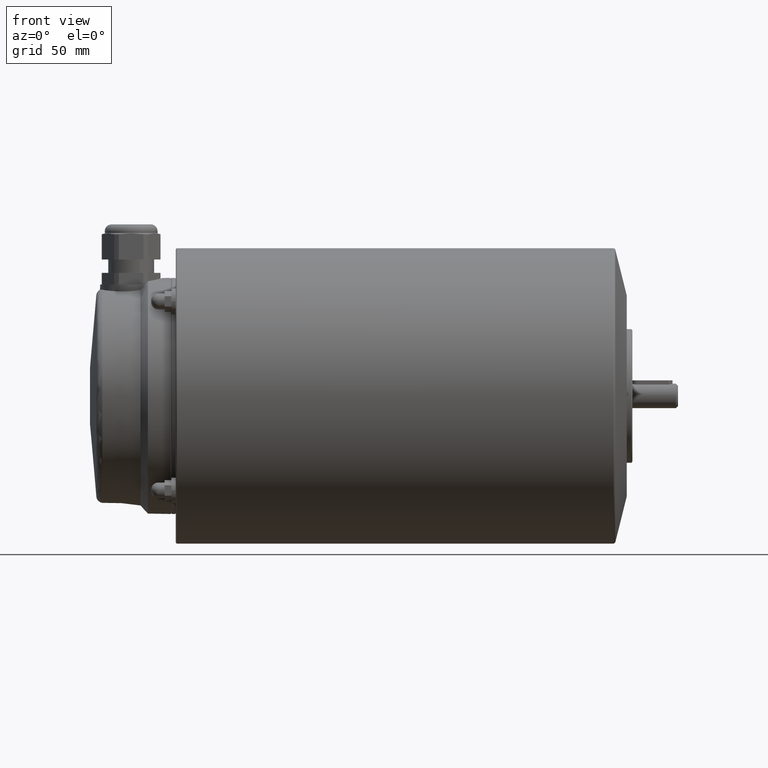
[diagram: clean part render]
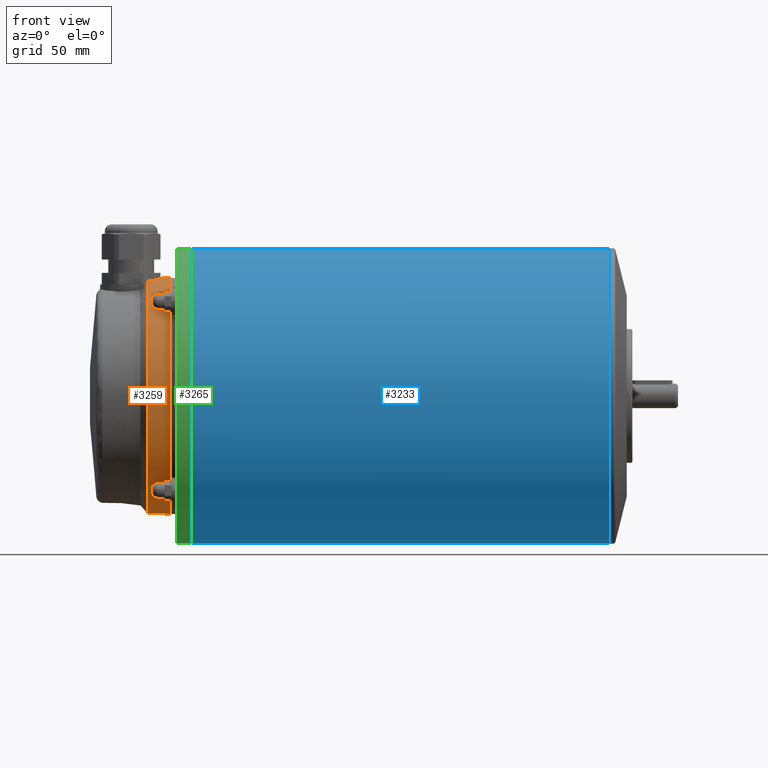
[diagram: same view with three faces highlighted in distinct colors, each labeled with its STEP entity id]
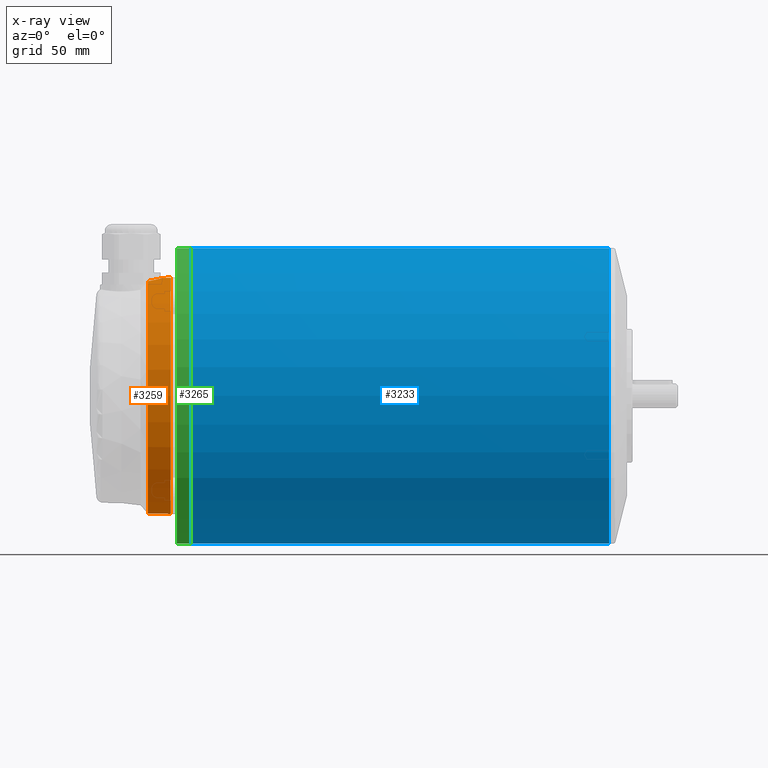
[diagram: x-ray of the same camera — body ghosted, the three highlighted faces saturated]
A machine part, front view with three faces highlighted in distinct colors.
The next image is the same camera in x-ray (body ghosted, the three faces saturated) — at least one of them is partly hidden behind the body in this view.
Their STEP definitions:

[orange] entity #3259 — the highlighted conical surface has half-angle 1 deg.
#39=CONICAL_SURFACE('',#3491,52.8219583377322,0.0174532925199424);
#69=B_SPLINE_CURVE_WITH_KNOTS('',3,(#4661,#4662,#4663,#4664,#4665,#4666,
#4667,#4668,#4669),.UNSPECIFIED.,.F.,.F.,(4,1,1,1,1,1,4),(2.35725804181769E-7,
0.00352459204833997,0.00704894837087575,0.0140976610159473,0.0211463736610189,
0.0246707299835547,0.0281950863060904),.UNSPECIFIED.);
#560=ORIENTED_EDGE('',*,*,#1080,.F.);
#561=ORIENTED_EDGE('',*,*,#1079,.F.);
#562=ORIENTED_EDGE('',*,*,#1081,.T.);
#1079=EDGE_CURVE('',#1345,#1343,#1524,.T.);
#1080=EDGE_CURVE('',#1343,#1345,#69,.T.);
#1081=EDGE_CURVE('',#1346,#1346,#1525,.T.);
#1343=VERTEX_POINT('',#4644);
#1345=VERTEX_POINT('',#4658);
#1346=VERTEX_POINT('',#4671);
#1524=CIRCLE('',#3490,52.8219583377322);
#1525=CIRCLE('',#3492,53.);
#1655=EDGE_LOOP('',(#560,#561));
#1656=EDGE_LOOP('',(#562));
#1898=FACE_BOUND('',#1655,.T.);
#1899=FACE_BOUND('',#1656,.T.);
#3259=ADVANCED_FACE('',(#1898,#1899),#39,.T.);
#3490=AXIS2_PLACEMENT_3D('',#4659,#3913,#3914);
#3491=AXIS2_PLACEMENT_3D('',#4660,#3915,#3916);
#3492=AXIS2_PLACEMENT_3D('',#4670,#3917,#3918);
#3913=DIRECTION('',(-1.,0.,0.));
#3914=DIRECTION('',(0.,0.,1.));
#3915=DIRECTION('',(1.,0.,0.));
#3916=DIRECTION('',(0.,0.,-1.));
#3917=DIRECTION('',(-1.,0.,0.));
#3918=DIRECTION('',(0.,0.,1.));
#4644=CARTESIAN_POINT('',(-215.,-11.8215904175371,51.4821258558066));
#4658=CARTESIAN_POINT('',(-215.,11.821590417537,51.4821258558066));
#4659=CARTESIAN_POINT('',(-215.,0.,0.));
#4660=CARTESIAN_POINT('',(-215.,0.,0.));
#4661=CARTESIAN_POINT('',(-215.,-11.8215904175371,51.4821258558066));
#4662=CARTESIAN_POINT('',(-214.003267949224,-11.1892313087548,51.6451822150673));
#4663=CARTESIAN_POINT('',(-212.209179167009,-9.7044132103878,51.9938137991129));
#4664=CARTESIAN_POINT('',(-209.414442885283,-5.88716217725802,52.663211126919));
#4665=CARTESIAN_POINT('',(-207.890865443032,-0.00867115471830198,53.1167649477891));
#4666=CARTESIAN_POINT('',(-209.412965750076,5.88681234314561,52.6635739289219));
#4667=CARTESIAN_POINT('',(-212.209800013451,9.70482033963063,51.9936726531398));
#4668=CARTESIAN_POINT('',(-214.003219037922,11.1892002778401,51.6451902165145));
#4669=CARTESIAN_POINT('',(-215.,11.821590417537,51.4821258558066));
#4670=CARTESIAN_POINT('',(-204.8,0.,0.));
#4671=CARTESIAN_POINT('',(-204.8,0.,53.));

[blue] entity #3233 — the highlighted cylindrical surface (bore or boss wall) has radius 66.3 mm, axis along (-1, 0, 0).
#494=ORIENTED_EDGE('',*,*,#1039,.T.);
#495=ORIENTED_EDGE('',*,*,#1040,.F.);
#1039=EDGE_CURVE('',#1310,#1310,#1492,.T.);
#1040=EDGE_CURVE('',#1311,#1311,#1493,.T.);
#1310=VERTEX_POINT('',#4524);
#1311=VERTEX_POINT('',#4526);
#1492=CIRCLE('',#3433,66.3);
#1493=CIRCLE('',#3434,66.3);
#1602=EDGE_LOOP('',(#494));
#1603=EDGE_LOOP('',(#495));
#1845=FACE_BOUND('',#1602,.T.);
#1846=FACE_BOUND('',#1603,.T.);
#2083=CYLINDRICAL_SURFACE('',#3432,66.3);
#3233=ADVANCED_FACE('',(#1845,#1846),#2083,.T.);
#3432=AXIS2_PLACEMENT_3D('',#4522,#3796,#3797);
#3433=AXIS2_PLACEMENT_3D('',#4523,#3798,#3799);
#3434=AXIS2_PLACEMENT_3D('',#4525,#3800,#3801);
#3796=DIRECTION('',(-1.,0.,0.));
#3797=DIRECTION('',(0.,0.,1.));
#3798=DIRECTION('',(-1.,0.,0.));
#3799=DIRECTION('',(0.,0.,1.));
#3800=DIRECTION('',(-1.,0.,0.));
#3801=DIRECTION('',(0.,0.,1.));
#4522=CARTESIAN_POINT('',(-241.,0.,0.));
#4523=CARTESIAN_POINT('',(-8.00000000000004,0.,0.));
#4524=CARTESIAN_POINT('',(-8.00000000000004,0.,66.3));
#4525=CARTESIAN_POINT('',(-195.5,0.,0.));
#4526=CARTESIAN_POINT('',(-195.5,0.,66.3));

[green] entity #3265 — the highlighted cylindrical surface (bore or boss wall) has radius 66.2995 mm, axis along (-1, 0, 0).
#577=ORIENTED_EDGE('',*,*,#1091,.T.);
#578=ORIENTED_EDGE('',*,*,#1092,.T.);
#1091=EDGE_CURVE('',#1356,#1356,#1535,.F.);
#1092=EDGE_CURVE('',#1357,#1357,#1536,.T.);
#1356=VERTEX_POINT('',#4697);
#1357=VERTEX_POINT('',#4699);
#1535=CIRCLE('',#3508,66.2995);
#1536=CIRCLE('',#3509,66.2995);
#1671=EDGE_LOOP('',(#577));
#1672=EDGE_LOOP('',(#578));
#1914=FACE_BOUND('',#1671,.T.);
#1915=FACE_BOUND('',#1672,.T.);
#2090=CYLINDRICAL_SURFACE('',#3507,66.2995);
#3265=ADVANCED_FACE('',(#1914,#1915),#2090,.T.);
#3507=AXIS2_PLACEMENT_3D('',#4695,#3947,#3948);
#3508=AXIS2_PLACEMENT_3D('',#4696,#3949,#3950);
#3509=AXIS2_PLACEMENT_3D('',#4698,#3951,#3952);
#3947=DIRECTION('',(-1.,0.,0.));
#3948=DIRECTION('',(0.,0.,1.));
#3949=DIRECTION('',(-1.,0.,0.));
#3950=DIRECTION('',(0.,0.,1.));
#3951=DIRECTION('',(-1.,0.,0.));
#3952=DIRECTION('',(0.,0.,1.));
#4695=CARTESIAN_POINT('',(-241.,0.,0.));
#4696=CARTESIAN_POINT('',(-202.,0.,0.));
#4697=CARTESIAN_POINT('',(-202.,0.,66.2995));
#4698=CARTESIAN_POINT('',(-195.5,0.,0.));
#4699=CARTESIAN_POINT('',(-195.5,0.,66.2995));